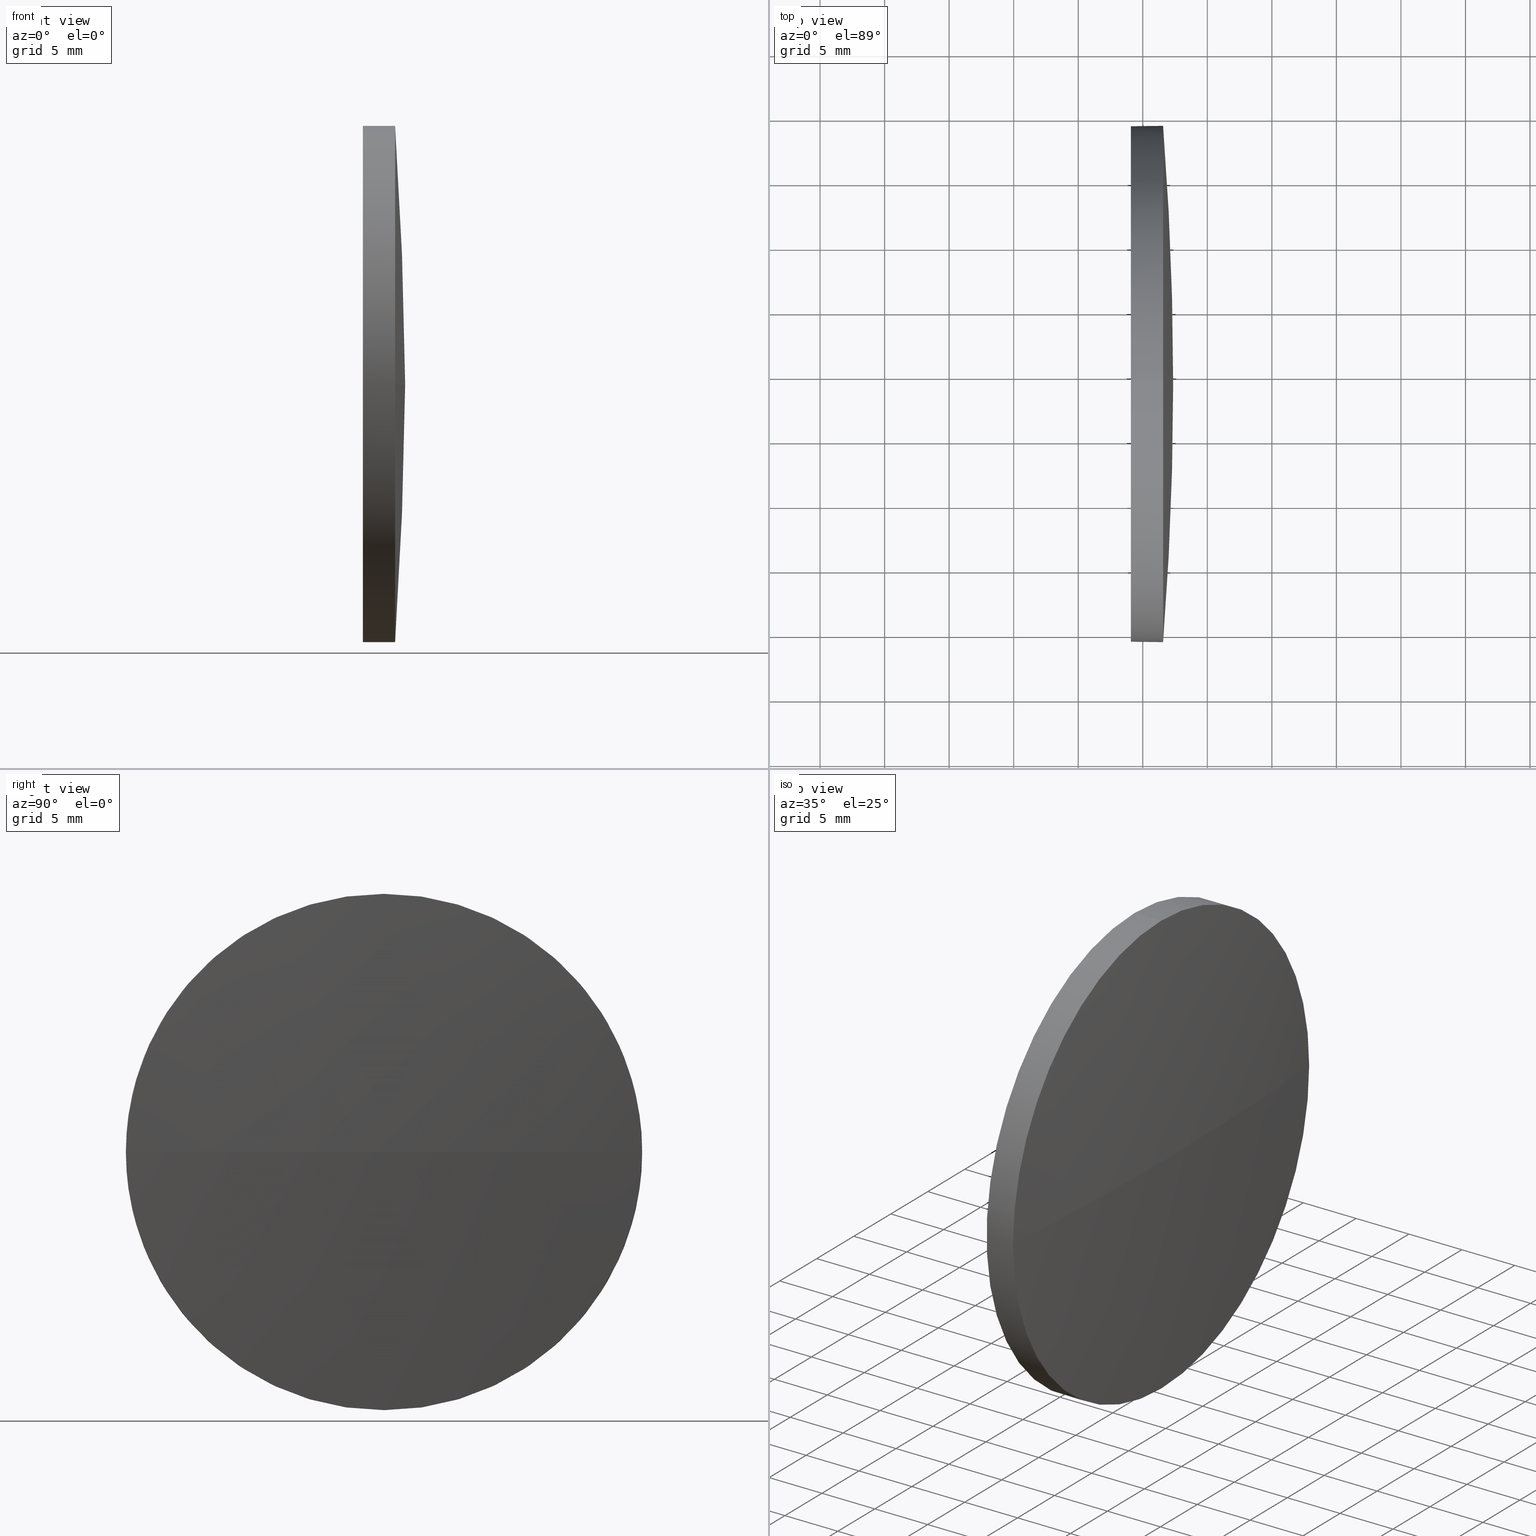
[diagram: canonical four-view strip — front | top / right | iso, engineering-drawing reading convention]
A machine part, canonical four-view strip (front | top / right | iso — engineering-drawing reading convention). The complete STEP part file that produces these views, byte-faithful:
ISO-10303-21;
HEADER;
FILE_DESCRIPTION (( 'STEP AP214' ),
    '1' );
FILE_NAME ('100063.STEP',
    '2019-04-30T06:10:01',
    ( '' ),
    ( '' ),
    'SwSTEP 2.0',
    'SolidWorks 2016',
    '' );
FILE_SCHEMA (( 'AUTOMOTIVE_DESIGN' ));
ENDSEC;

DATA;
#1 = VECTOR ( 'NONE', #133, 1000.000000000000000 ) ;
#2 = ORIENTED_EDGE ( 'NONE', *, *, #52, .F. ) ;
#3 = SURFACE_STYLE_USAGE ( .BOTH. , #186 ) ;
#4 = DIRECTION ( 'NONE',  ( 0.0000000000000000000, -1.000000000000000000, -1.224646799147353000E-016 ) ) ;
#5 =( NAMED_UNIT ( * ) PLANE_ANGLE_UNIT ( ) SI_UNIT ( $, .RADIAN. ) );
#6 = EDGE_LOOP ( 'NONE', ( #90, #183, #8, #181, #71 ) ) ;
#7 = DIRECTION ( 'NONE',  ( 0.0000000000000000000, 0.0000000000000000000, 1.000000000000000000 ) ) ;
#8 = ORIENTED_EDGE ( 'NONE', *, *, #32, .F. ) ;
#9 = APPLICATION_CONTEXT ( 'automotive_design' ) ;
#10 = PRODUCT_RELATED_PRODUCT_CATEGORY ( 'part', '', ( #179 ) ) ;
#11 = UNCERTAINTY_MEASURE_WITH_UNIT (LENGTH_MEASURE( 1.000000000000000100E-005 ), #15, 'distance_accuracy_value', 'NONE');
#12 = CIRCLE ( 'NONE', #50, 20.00000000000000400 ) ;
#13 = COLOUR_RGB ( '',1.000000000000000000, 1.000000000000000000, 1.000000000000000000 ) ;
#14 = AXIS2_PLACEMENT_3D ( 'NONE', #161, #7, #151 ) ;
#15 =( LENGTH_UNIT ( ) NAMED_UNIT ( * ) SI_UNIT ( .MILLI., .METRE. ) );
#16 = APPLICATION_CONTEXT ( 'automotive_design' ) ;
#17 = DIRECTION ( 'NONE',  ( 0.0000000000000000000, 0.0000000000000000000, -1.000000000000000000 ) ) ;
#18 = VERTEX_POINT ( 'NONE', #142 ) ;
#19 = CARTESIAN_POINT ( 'NONE',  ( 567.3554252328480100, 109.2775278942659600, 0.0000000000000000000 ) ) ;
#20 = APPLICATION_PROTOCOL_DEFINITION ( 'draft international standard', 'automotive_design', 1998, #16 ) ;
#21 = AXIS2_PLACEMENT_3D ( 'NONE', #74, #164, #98 ) ;
#22 =( LENGTH_UNIT ( ) NAMED_UNIT ( * ) SI_UNIT ( .MILLI., .METRE. ) );
#23 = SPHERICAL_SURFACE ( 'NONE', #56, 256.8002564102562800 ) ;
#24 = EDGE_LOOP ( 'NONE', ( #44, #38, #82, #79 ) ) ;
#25 = AXIS2_PLACEMENT_3D ( 'NONE', #95, #173, #159 ) ;
#26 = CYLINDRICAL_SURFACE ( 'NONE', #36, 20.00000000000000400 ) ;
#27 = AXIS2_PLACEMENT_3D ( 'NONE', #65, #31, #4 ) ;
#28 = CARTESIAN_POINT ( 'NONE',  ( 564.0754252328479200, 109.2775278942657500, 0.0000000000000000000 ) ) ;
#29 = CARTESIAN_POINT ( 'NONE',  ( 566.5754252328480300, 109.2775278942657500, 0.0000000000000000000 ) ) ;
#30 =( NAMED_UNIT ( * ) SI_UNIT ( $, .STERADIAN. ) SOLID_ANGLE_UNIT ( ) );
#31 = DIRECTION ( 'NONE',  ( 0.0000000000000000000, -1.224646799147353200E-016, 1.000000000000000000 ) ) ;
#32 = EDGE_CURVE ( 'NONE', #93, #62, #67, .T. ) ;
#33 = FILL_AREA_STYLE ('',( #132 ) ) ;
#34 = PRESENTATION_STYLE_ASSIGNMENT (( #3 ) ) ;
#35 = CARTESIAN_POINT ( 'NONE',  ( 0.0000000000000000000, 0.0000000000000000000, 0.0000000000000000000 ) ) ;
#36 = AXIS2_PLACEMENT_3D ( 'NONE', #70, #110, #184 ) ;
#37 =( GEOMETRIC_REPRESENTATION_CONTEXT ( 3 ) GLOBAL_UNCERTAINTY_ASSIGNED_CONTEXT ( ( #106 ) ) GLOBAL_UNIT_ASSIGNED_CONTEXT ( ( #177, #5, #102 ) ) REPRESENTATION_CONTEXT ( 'NONE', 'WORKASPACE' ) );
#38 = ORIENTED_EDGE ( 'NONE', *, *, #104, .T. ) ;
#39 = APPLICATION_PROTOCOL_DEFINITION ( 'draft international standard', 'automotive_design', 1998, #9 ) ;
#40 = MECHANICAL_DESIGN_GEOMETRIC_PRESENTATION_REPRESENTATION (  '', ( #108 ), #99 ) ;
#41 = ORIENTED_EDGE ( 'NONE', *, *, #32, .T. ) ;
#42 = EDGE_CURVE ( 'NONE', #153, #18, #125, .T. ) ;
#43 = MANIFOLD_SOLID_BREP ( '��ת1', #87 ) ;
#44 = ORIENTED_EDGE ( 'NONE', *, *, #168, .F. ) ;
#45 = CARTESIAN_POINT ( 'NONE',  ( 564.0754252328479200, 109.2775278942657500, 20.00000000000000400 ) ) ;
#46 = CARTESIAN_POINT ( 'NONE',  ( 566.5754252328480300, 109.2775278942657500, 20.00000000000000400 ) ) ;
#47 = CIRCLE ( 'NONE', #178, 256.8002564102562800 ) ;
#48 = CARTESIAN_POINT ( 'NONE',  ( 310.5551688225917200, 109.2775278942659700, 0.0000000000000000000 ) ) ;
#49 = SURFACE_STYLE_USAGE ( .BOTH. , #103 ) ;
#50 = AXIS2_PLACEMENT_3D ( 'NONE', #147, #64, #130 ) ;
#51 = FACE_OUTER_BOUND ( 'NONE', #118, .T. ) ;
#52 = EDGE_CURVE ( 'NONE', #62, #93, #123, .T. ) ;
#53 = PRESENTATION_LAYER_ASSIGNMENT (  '', '', ( #108 ) ) ;
#54 = ORIENTED_EDGE ( 'NONE', *, *, #94, .F. ) ;
#55 = DIRECTION ( 'NONE',  ( -1.000000000000000000, -0.0000000000000000000, -0.0000000000000000000 ) ) ;
#56 = AXIS2_PLACEMENT_3D ( 'NONE', #160, #88, #86 ) ;
#57 = CYLINDRICAL_SURFACE ( 'NONE', #25, 20.00000000000000400 ) ;
#58 = DIRECTION ( 'NONE',  ( -1.000000000000000000, -0.0000000000000000000, -0.0000000000000000000 ) ) ;
#59 = DIRECTION ( 'NONE',  ( 0.0000000000000000000, 0.0000000000000000000, 1.000000000000000000 ) ) ;
#60 = FILL_AREA_STYLE_COLOUR ( '', #13 ) ;
#61 = CIRCLE ( 'NONE', #166, 20.00000000000000400 ) ;
#62 = VERTEX_POINT ( 'NONE', #144 ) ;
#63 = CARTESIAN_POINT ( 'NONE',  ( 566.5754252328480300, 109.2775278942657500, 0.0000000000000000000 ) ) ;
#64 = DIRECTION ( 'NONE',  ( -1.000000000000000000, -0.0000000000000000000, -0.0000000000000000000 ) ) ;
#65 = CARTESIAN_POINT ( 'NONE',  ( 310.5551688225917200, 109.2775278942659700, 0.0000000000000000000 ) ) ;
#66 = ORIENTED_EDGE ( 'NONE', *, *, #122, .T. ) ;
#67 = CIRCLE ( 'NONE', #143, 20.00000000000000400 ) ;
#68 = DIRECTION ( 'NONE',  ( -1.000000000000000000, -0.0000000000000000000, -0.0000000000000000000 ) ) ;
#69 = DIRECTION ( 'NONE',  ( -1.000000000000000000, -0.0000000000000000000, -0.0000000000000000000 ) ) ;
#70 = CARTESIAN_POINT ( 'NONE',  ( 554.5689279130747300, 109.2775278942657500, 0.0000000000000000000 ) ) ;
#71 = ORIENTED_EDGE ( 'NONE', *, *, #126, .T. ) ;
#72 = ADVANCED_FACE ( 'NONE', ( #51 ), #57, .T. ) ;
#73 = ADVANCED_FACE ( 'NONE', ( #137 ), #26, .T. ) ;
#74 = CARTESIAN_POINT ( 'NONE',  ( 564.0754252328479200, 109.2775278942657500, 0.0000000000000000000 ) ) ;
#75 = CARTESIAN_POINT ( 'NONE',  ( 554.5689279130747300, 109.2775278942657500, 20.00000000000000400 ) ) ;
#76 = EDGE_CURVE ( 'NONE', #18, #138, #61, .T. ) ;
#77 =( NAMED_UNIT ( * ) PLANE_ANGLE_UNIT ( ) SI_UNIT ( $, .RADIAN. ) );
#78 = SHAPE_DEFINITION_REPRESENTATION ( #120, #155 ) ;
#79 = ORIENTED_EDGE ( 'NONE', *, *, #42, .F. ) ;
#80 = SURFACE_STYLE_FILL_AREA ( #33 ) ;
#81 = EDGE_LOOP ( 'NONE', ( #121, #170, #175, #111 ) ) ;
#82 = ORIENTED_EDGE ( 'NONE', *, *, #76, .F. ) ;
#83 = MECHANICAL_DESIGN_GEOMETRIC_PRESENTATION_REPRESENTATION (  '', ( #117 ), #148 ) ;
#84 = LINE ( 'NONE', #75, #1 ) ;
#85 = DIRECTION ( 'NONE',  ( 1.000000000000000000, 0.0000000000000000000, 0.0000000000000000000 ) ) ;
#86 = DIRECTION ( 'NONE',  ( 0.0000000000000000000, -1.000000000000000000, 0.0000000000000000000 ) ) ;
#87 = CLOSED_SHELL ( 'NONE', ( #73, #135, #174, #72, #146 ) ) ;
#88 = DIRECTION ( 'NONE',  ( 0.0000000000000000000, 0.0000000000000000000, 1.000000000000000000 ) ) ;
#89 = CIRCLE ( 'NONE', #27, 256.8002564102562800 ) ;
#90 = ORIENTED_EDGE ( 'NONE', *, *, #42, .T. ) ;
#91 = FACE_OUTER_BOUND ( 'NONE', #162, .T. ) ;
#92 = PRODUCT_DEFINITION_CONTEXT ( 'detailed design', #9, 'design' ) ;
#93 = VERTEX_POINT ( 'NONE', #45 ) ;
#94 = EDGE_CURVE ( 'NONE', #18, #62, #167, .T. ) ;
#95 = CARTESIAN_POINT ( 'NONE',  ( 554.5689279130747300, 109.2775278942657500, 0.0000000000000000000 ) ) ;
#96 = CARTESIAN_POINT ( 'NONE',  ( 564.0754252328479200, 109.2775278942657500, 0.0000000000000000000 ) ) ;
#97 = UNCERTAINTY_MEASURE_WITH_UNIT (LENGTH_MEASURE( 1.000000000000000100E-005 ), #22, 'distance_accuracy_value', 'NONE');
#98 = DIRECTION ( 'NONE',  ( 0.0000000000000000000, 0.0000000000000000000, -1.000000000000000000 ) ) ;
#99 =( GEOMETRIC_REPRESENTATION_CONTEXT ( 3 ) GLOBAL_UNCERTAINTY_ASSIGNED_CONTEXT ( ( #97 ) ) GLOBAL_UNIT_ASSIGNED_CONTEXT ( ( #22, #77, #30 ) ) REPRESENTATION_CONTEXT ( 'NONE', 'WORKASPACE' ) );
#100 = VERTEX_POINT ( 'NONE', #46 ) ;
#101 = DIRECTION ( 'NONE',  ( -1.000000000000000000, 0.0000000000000000000, 0.0000000000000000000 ) ) ;
#102 =( NAMED_UNIT ( * ) SI_UNIT ( $, .STERADIAN. ) SOLID_ANGLE_UNIT ( ) );
#103 = SURFACE_SIDE_STYLE ('',( #80 ) ) ;
#104 = EDGE_CURVE ( 'NONE', #154, #138, #47, .T. ) ;
#105 = PRODUCT_CONTEXT ( 'NONE', #16, 'mechanical' ) ;
#106 = UNCERTAINTY_MEASURE_WITH_UNIT (LENGTH_MEASURE( 1.000000000000000100E-005 ), #177, 'distance_accuracy_value', 'NONE');
#107 = ORIENTED_EDGE ( 'NONE', *, *, #136, .T. ) ;
#108 = STYLED_ITEM ( 'NONE', ( #141 ), #155 ) ;
#109 = PRODUCT_DEFINITION_FORMATION_WITH_SPECIFIED_SOURCE ( '�κ�', '', #179, .NOT_KNOWN. ) ;
#110 = DIRECTION ( 'NONE',  ( -1.000000000000000000, -0.0000000000000000000, -0.0000000000000000000 ) ) ;
#111 = ORIENTED_EDGE ( 'NONE', *, *, #136, .F. ) ;
#112 = DIRECTION ( 'NONE',  ( 0.0000000000000000000, 0.0000000000000000000, 1.000000000000000000 ) ) ;
#113 = DIRECTION ( 'NONE',  ( 0.0000000000000000000, 0.0000000000000000000, 1.000000000000000000 ) ) ;
#114 = ORIENTED_EDGE ( 'NONE', *, *, #76, .T. ) ;
#115 = DIRECTION ( 'NONE',  ( -1.000000000000000000, -0.0000000000000000000, -0.0000000000000000000 ) ) ;
#116 = DIRECTION ( 'NONE',  ( 0.0000000000000000000, 0.0000000000000000000, 1.000000000000000000 ) ) ;
#117 = STYLED_ITEM ( 'NONE', ( #34 ), #43 ) ;
#118 = EDGE_LOOP ( 'NONE', ( #54, #114, #107, #66, #2 ) ) ;
#119 = DIRECTION ( 'NONE',  ( -1.000000000000000000, -0.0000000000000000000, -0.0000000000000000000 ) ) ;
#120 = PRODUCT_DEFINITION_SHAPE ( 'NONE', 'NONE',  #180 ) ;
#121 = ORIENTED_EDGE ( 'NONE', *, *, #104, .F. ) ;
#122 = EDGE_CURVE ( 'NONE', #100, #93, #84, .T. ) ;
#123 = CIRCLE ( 'NONE', #171, 20.00000000000000400 ) ;
#124 = FACE_OUTER_BOUND ( 'NONE', #24, .T. ) ;
#125 = CIRCLE ( 'NONE', #165, 20.00000000000000400 ) ;
#126 = EDGE_CURVE ( 'NONE', #100, #153, #12, .T. ) ;
#127 = CARTESIAN_POINT ( 'NONE',  ( 554.5689279130747300, 109.2775278942657500, -20.00000000000000400 ) ) ;
#128 =( NAMED_UNIT ( * ) PLANE_ANGLE_UNIT ( ) SI_UNIT ( $, .RADIAN. ) );
#129 = VECTOR ( 'NONE', #115, 1000.000000000000000 ) ;
#130 = DIRECTION ( 'NONE',  ( 0.0000000000000000000, 0.0000000000000000000, 1.000000000000000000 ) ) ;
#131 = CIRCLE ( 'NONE', #182, 20.00000000000000400 ) ;
#132 = FILL_AREA_STYLE_COLOUR ( '', #152 ) ;
#133 = DIRECTION ( 'NONE',  ( -1.000000000000000000, -0.0000000000000000000, -0.0000000000000000000 ) ) ;
#134 = DIRECTION ( 'NONE',  ( 0.0000000000000000000, 0.0000000000000000000, 1.000000000000000000 ) ) ;
#135 = ADVANCED_FACE ( 'NONE', ( #169 ), #156, .T. ) ;
#136 = EDGE_CURVE ( 'NONE', #138, #100, #131, .T. ) ;
#137 = FACE_OUTER_BOUND ( 'NONE', #6, .T. ) ;
#138 = VERTEX_POINT ( 'NONE', #149 ) ;
#139 = PRESENTATION_LAYER_ASSIGNMENT (  '', '', ( #117 ) ) ;
#140 = AXIS2_PLACEMENT_3D ( 'NONE', #35, #145, #85 ) ;
#141 = PRESENTATION_STYLE_ASSIGNMENT (( #49 ) ) ;
#142 = CARTESIAN_POINT ( 'NONE',  ( 566.5754252328480300, 109.2775278942657500, -20.00000000000000400 ) ) ;
#143 = AXIS2_PLACEMENT_3D ( 'NONE', #28, #69, #59 ) ;
#144 = CARTESIAN_POINT ( 'NONE',  ( 564.0754252328479200, 109.2775278942657500, -20.00000000000000400 ) ) ;
#145 = DIRECTION ( 'NONE',  ( 0.0000000000000000000, 0.0000000000000000000, 1.000000000000000000 ) ) ;
#146 = ADVANCED_FACE ( 'NONE', ( #91 ), #163, .F. ) ;
#147 = CARTESIAN_POINT ( 'NONE',  ( 566.5754252328480300, 109.2775278942657500, 0.0000000000000000000 ) ) ;
#148 =( GEOMETRIC_REPRESENTATION_CONTEXT ( 3 ) GLOBAL_UNCERTAINTY_ASSIGNED_CONTEXT ( ( #11 ) ) GLOBAL_UNIT_ASSIGNED_CONTEXT ( ( #15, #128, #185 ) ) REPRESENTATION_CONTEXT ( 'NONE', 'WORKASPACE' ) );
#149 = CARTESIAN_POINT ( 'NONE',  ( 566.5754252328480300, 89.27752789426587300, 0.0000000000000000000 ) ) ;
#150 = SURFACE_STYLE_FILL_AREA ( #172 ) ;
#151 = DIRECTION ( 'NONE',  ( 0.0000000000000000000, -1.000000000000000000, 0.0000000000000000000 ) ) ;
#152 = COLOUR_RGB ( '',1.000000000000000000, 1.000000000000000000, 1.000000000000000000 ) ;
#153 = VERTEX_POINT ( 'NONE', #176 ) ;
#154 = VERTEX_POINT ( 'NONE', #19 ) ;
#155 = ADVANCED_BREP_SHAPE_REPRESENTATION ( '100063', ( #43, #140 ), #37 ) ;
#156 = SPHERICAL_SURFACE ( 'NONE', #14, 256.8002564102562800 ) ;
#157 = CARTESIAN_POINT ( 'NONE',  ( 566.5754252328480300, 109.2775278942657500, 0.0000000000000000000 ) ) ;
#158 = ORIENTED_EDGE ( 'NONE', *, *, #52, .T. ) ;
#159 = DIRECTION ( 'NONE',  ( 0.0000000000000000000, 0.0000000000000000000, 1.000000000000000000 ) ) ;
#160 = CARTESIAN_POINT ( 'NONE',  ( 310.5551688225917200, 109.2775278942659700, 0.0000000000000000000 ) ) ;
#161 = CARTESIAN_POINT ( 'NONE',  ( 310.5551688225917200, 109.2775278942659700, 0.0000000000000000000 ) ) ;
#162 = EDGE_LOOP ( 'NONE', ( #41, #158 ) ) ;
#163 = PLANE ( 'NONE',  #21 ) ;
#164 = DIRECTION ( 'NONE',  ( 1.000000000000000000, 0.0000000000000000000, 0.0000000000000000000 ) ) ;
#165 = AXIS2_PLACEMENT_3D ( 'NONE', #29, #68, #112 ) ;
#166 = AXIS2_PLACEMENT_3D ( 'NONE', #157, #58, #116 ) ;
#167 = LINE ( 'NONE', #127, #129 ) ;
#168 = EDGE_CURVE ( 'NONE', #154, #153, #89, .T. ) ;
#169 = FACE_OUTER_BOUND ( 'NONE', #81, .T. ) ;
#170 = ORIENTED_EDGE ( 'NONE', *, *, #168, .T. ) ;
#171 = AXIS2_PLACEMENT_3D ( 'NONE', #96, #55, #113 ) ;
#172 = FILL_AREA_STYLE ('',( #60 ) ) ;
#173 = DIRECTION ( 'NONE',  ( -1.000000000000000000, -0.0000000000000000000, -0.0000000000000000000 ) ) ;
#174 = ADVANCED_FACE ( 'NONE', ( #124 ), #23, .T. ) ;
#175 = ORIENTED_EDGE ( 'NONE', *, *, #126, .F. ) ;
#176 = CARTESIAN_POINT ( 'NONE',  ( 566.5754252328480300, 129.2775278942658300, 2.449293598294688800E-015 ) ) ;
#177 =( LENGTH_UNIT ( ) NAMED_UNIT ( * ) SI_UNIT ( .MILLI., .METRE. ) );
#178 = AXIS2_PLACEMENT_3D ( 'NONE', #48, #17, #101 ) ;
#179 = PRODUCT ( '100063', '100063', '', ( #105 ) ) ;
#180 = PRODUCT_DEFINITION ( 'δ֪', '', #109, #92 ) ;
#181 = ORIENTED_EDGE ( 'NONE', *, *, #122, .F. ) ;
#182 = AXIS2_PLACEMENT_3D ( 'NONE', #63, #119, #134 ) ;
#183 = ORIENTED_EDGE ( 'NONE', *, *, #94, .T. ) ;
#184 = DIRECTION ( 'NONE',  ( 0.0000000000000000000, 0.0000000000000000000, 1.000000000000000000 ) ) ;
#185 =( NAMED_UNIT ( * ) SI_UNIT ( $, .STERADIAN. ) SOLID_ANGLE_UNIT ( ) );
#186 = SURFACE_SIDE_STYLE ('',( #150 ) ) ;
ENDSEC;
END-ISO-10303-21;
